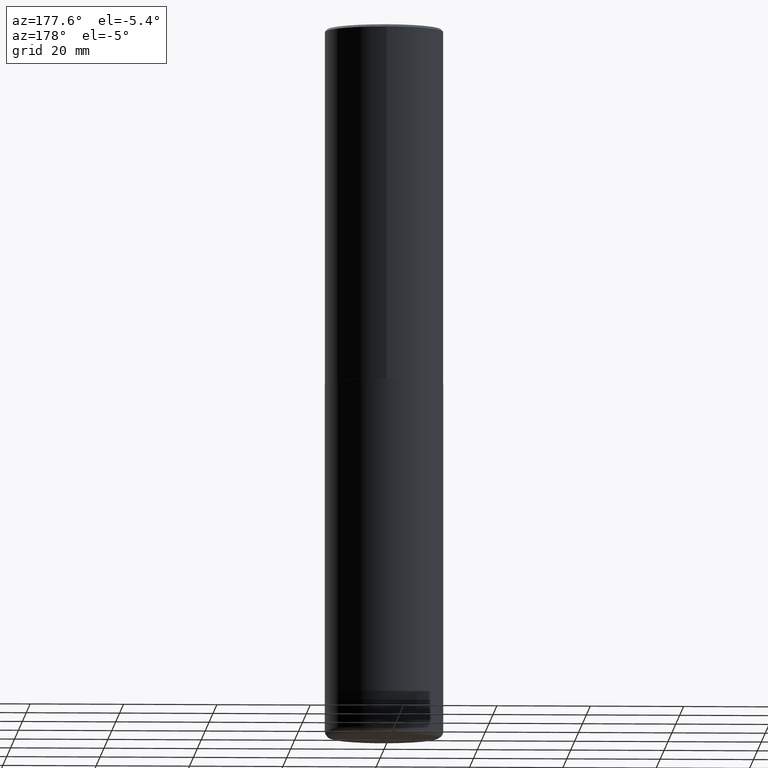
[diagram: clean part render]
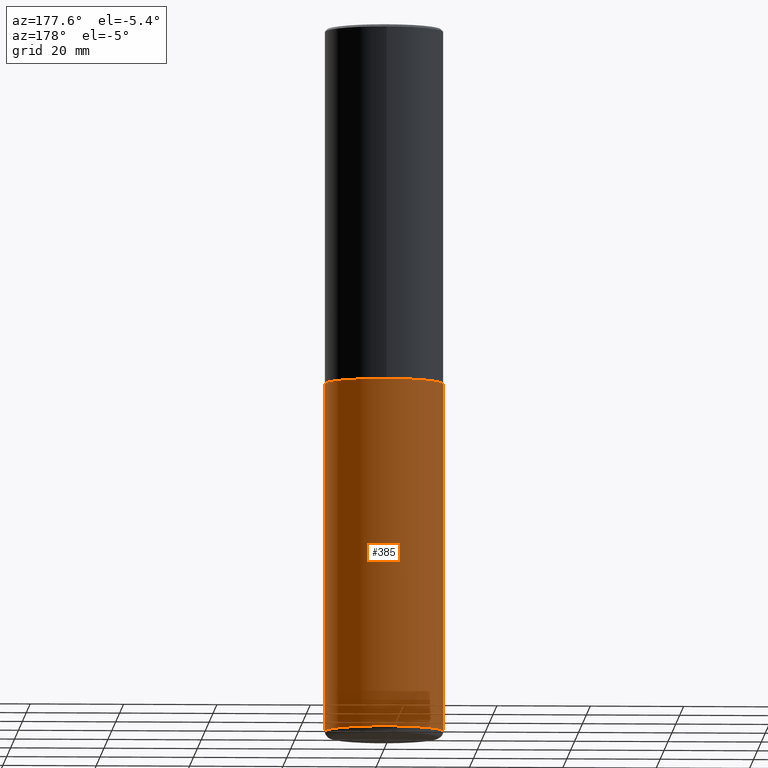
[diagram: same view with one face highlighted and labeled with its STEP entity id]
A machine part, auxiliary view. The second image highlights one B-rep face of the part: STEP entity #385.
In plain terms, the highlighted cylindrical surface (partial cylindrical patch) has radius 12.7 mm, axis along (-0, 0, 1).
Its self-contained STEP definition (entity closure, byte-faithful):
#3 = ORIENTED_EDGE ( 'NONE', *, *, #120, .F. ) ;
#14 = CARTESIAN_POINT ( 'NONE',  ( -0.4999999999999997224, -1.718668547392778504E-14, -5.940000000000000391 ) ) ;
#32 = CARTESIAN_POINT ( 'NONE',  ( -0.5000000000000000000, -1.205420790582835944E-14, -3.000000000000000444 ) ) ;
#48 = CIRCLE ( 'NONE', #52, 0.5000000000000001110 ) ;
#52 = AXIS2_PLACEMENT_3D ( 'NONE', #365, #301, #171 ) ;
#53 = ORIENTED_EDGE ( 'NONE', *, *, #67, .T. ) ;
#67 = EDGE_CURVE ( 'NONE', #226, #324, #48, .T. ) ;
#93 = AXIS2_PLACEMENT_3D ( 'NONE', #103, #243, #370 ) ;
#100 = ORIENTED_EDGE ( 'NONE', *, *, #295, .T. ) ;
#103 = CARTESIAN_POINT ( 'NONE',  ( 0.000000000000000000, 0.000000000000000000, 0.000000000000000000 ) ) ;
#110 = EDGE_CURVE ( 'NONE', #226, #262, #270, .T. ) ;
#111 = VECTOR ( 'NONE', #139, 39.37007874015748143 ) ;
#120 = EDGE_CURVE ( 'NONE', #262, #205, #203, .T. ) ;
#139 = DIRECTION ( 'NONE',  ( -2.445468806185136877E-29, 3.491481338843145188E-15, 1.000000000000000000 ) ) ;
#171 = DIRECTION ( 'NONE',  ( 1.000000000000000000, -6.982962677686269077E-15, 0.000000000000000000 ) ) ;
#203 = CIRCLE ( 'NONE', #346, 0.5000000000000000000 ) ;
#205 = VERTEX_POINT ( 'NONE', #32 ) ;
#209 = CARTESIAN_POINT ( 'NONE',  ( 7.336406418555409790E-29, -1.047444401652943635E-14, -3.000000000000000444 ) ) ;
#226 = VERTEX_POINT ( 'NONE', #293 ) ;
#238 = DIRECTION ( 'NONE',  ( 1.000000000000000000, -6.982962677686266711E-15, 0.000000000000000000 ) ) ;
#243 = DIRECTION ( 'NONE',  ( -2.445468806185136597E-29, 3.491481338843145583E-15, 1.000000000000000000 ) ) ;
#247 = DIRECTION ( 'NONE',  ( -2.445468806185136877E-29, 3.491481338843145188E-15, 1.000000000000000000 ) ) ;
#252 = EDGE_LOOP ( 'NONE', ( #53, #100, #3, #332 ) ) ;
#262 = VERTEX_POINT ( 'NONE', #333 ) ;
#269 = CARTESIAN_POINT ( 'NONE',  ( -0.5000000000000000000, 3.552713678800500929E-15, -2.459467545127452891E-29 ) ) ;
#270 = LINE ( 'NONE', #277, #111 ) ;
#271 = FACE_OUTER_BOUND ( 'NONE', #252, .T. ) ;
#277 = CARTESIAN_POINT ( 'NONE',  ( 0.5000000000000000000, -3.491481338843133355E-15, 2.438088387897967896E-29 ) ) ;
#293 = CARTESIAN_POINT ( 'NONE',  ( 0.4999999999999997224, -2.423088049157142248E-14, -5.940000000000000391 ) ) ;
#295 = EDGE_CURVE ( 'NONE', #324, #205, #327, .T. ) ;
#301 = DIRECTION ( 'NONE',  ( -2.445468806185136597E-29, 3.491481338843145583E-15, 1.000000000000000000 ) ) ;
#324 = VERTEX_POINT ( 'NONE', #14 ) ;
#327 = LINE ( 'NONE', #269, #387 ) ;
#332 = ORIENTED_EDGE ( 'NONE', *, *, #110, .F. ) ;
#333 = CARTESIAN_POINT ( 'NONE',  ( 0.5000000000000000000, -1.396592535537257129E-14, -3.000000000000000444 ) ) ;
#346 = AXIS2_PLACEMENT_3D ( 'NONE', #209, #406, #238 ) ;
#365 = CARTESIAN_POINT ( 'NONE',  ( 1.452608470873971255E-28, -2.073939915272828597E-14, -5.940000000000000391 ) ) ;
#370 = DIRECTION ( 'NONE',  ( 1.000000000000000000, -6.982962677686266711E-15, 4.876176775795935793E-29 ) ) ;
#385 = ADVANCED_FACE ( 'NONE', ( #271 ), #400, .T. ) ;
#387 = VECTOR ( 'NONE', #247, 39.37007874015748143 ) ;
#400 = CYLINDRICAL_SURFACE ( 'NONE', #93, 0.5000000000000000000 ) ;
#406 = DIRECTION ( 'NONE',  ( -2.445468806185136597E-29, 3.491481338843145583E-15, 1.000000000000000000 ) ) ;